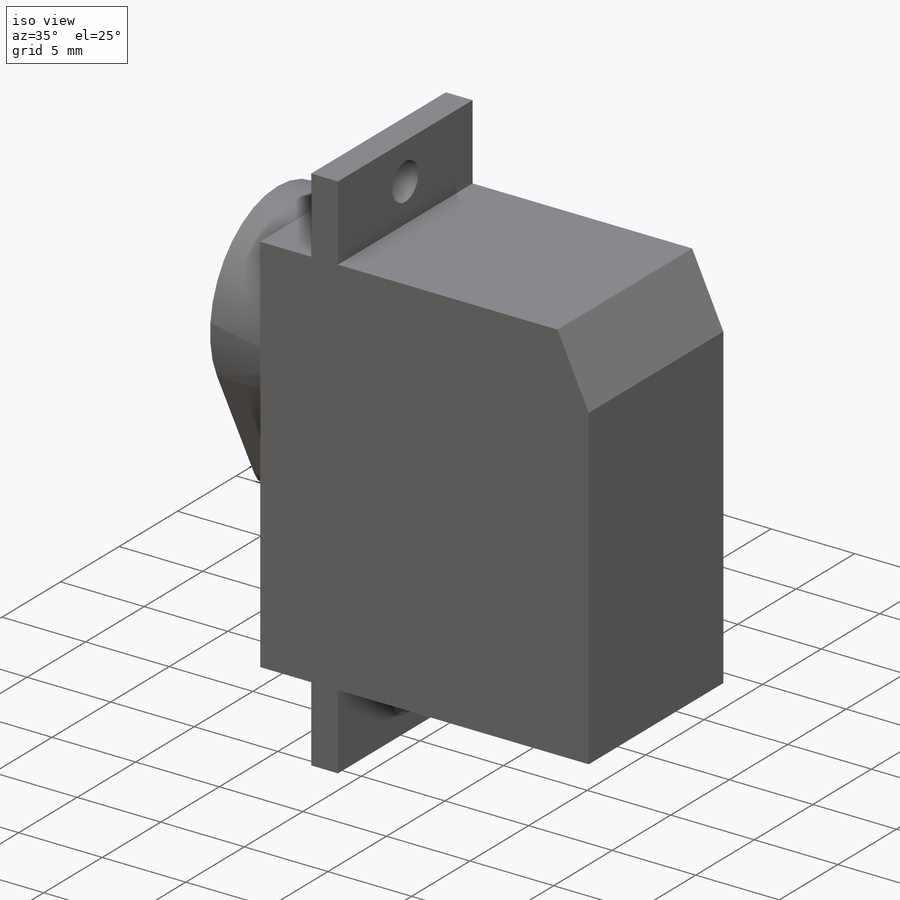
[diagram: iso view]
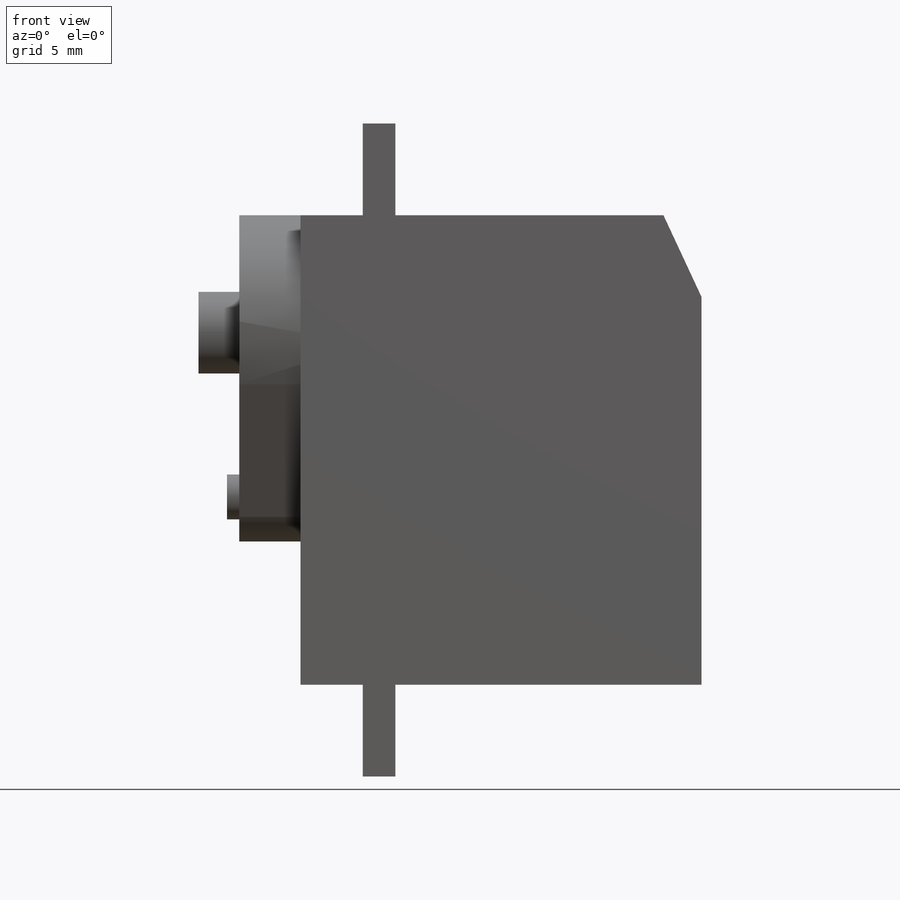
[diagram: front view]
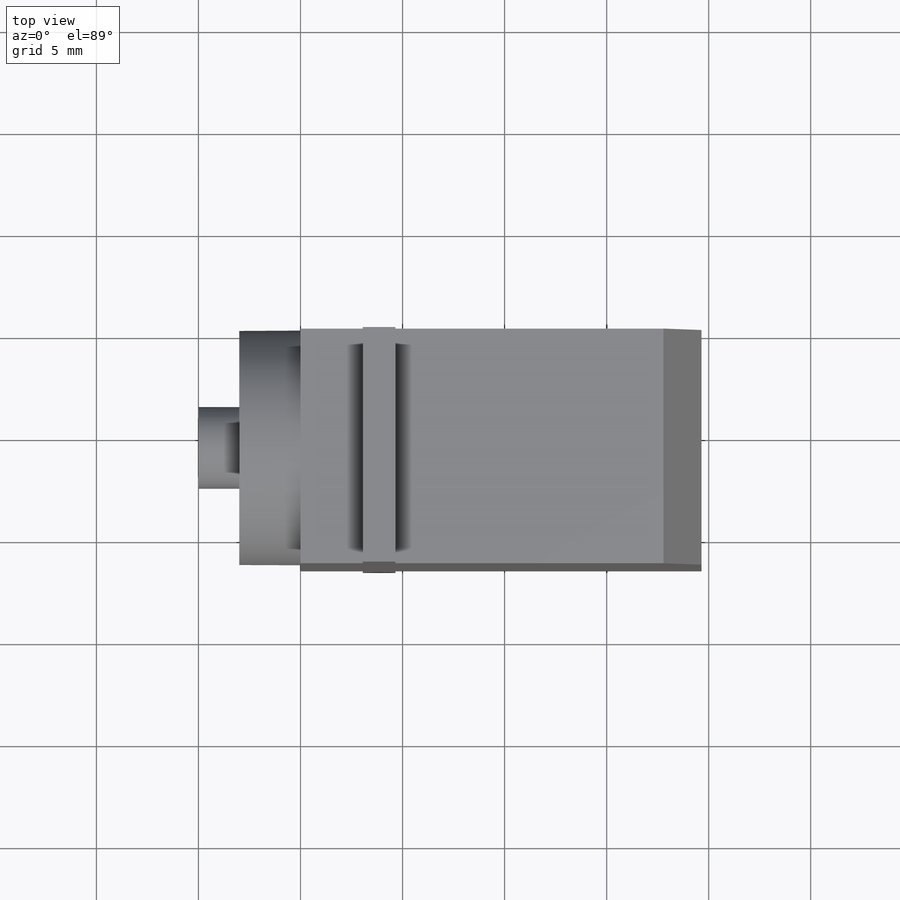
[diagram: top view]
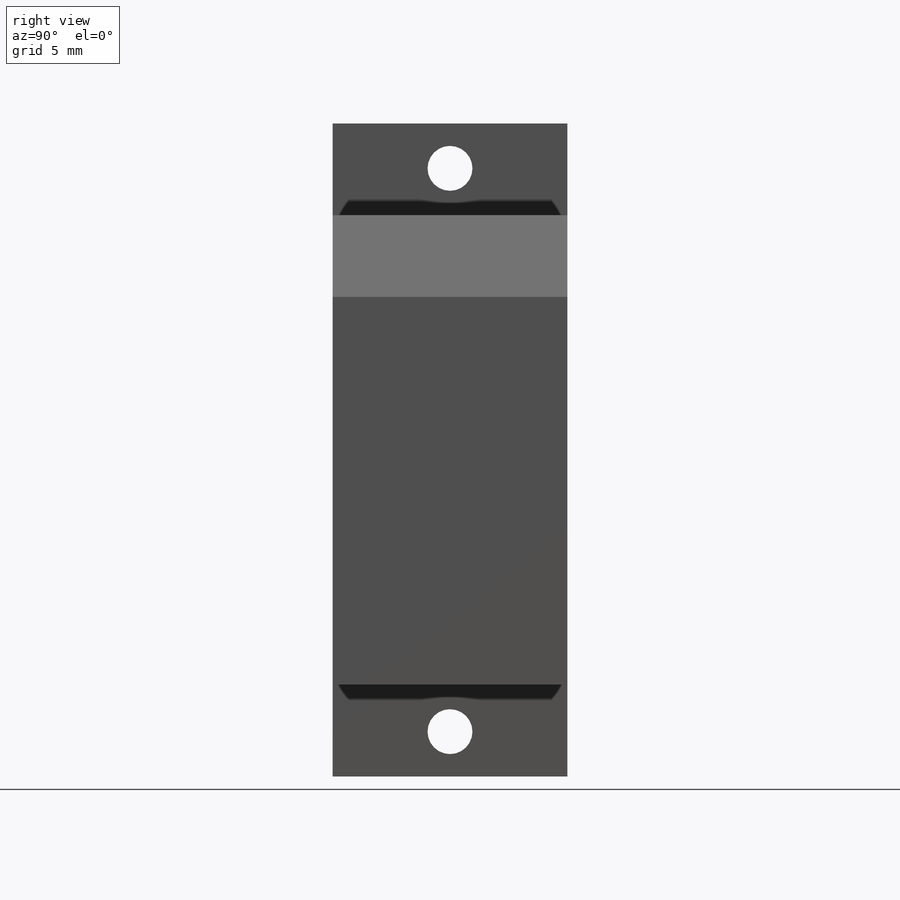
[diagram: right view]
SOLIDWORKS PART (.sldprt)
format: sldprt  version: not decoded by parser v0  size: 310,784 bytes
history: native  units: mm
features: sketch x9, extrude x4, plane x3, cut_extrude x2, material x1, chamfer x1 (+10 scaffold rows collapsed)
feature tree (30):
  scaffold x10  (default folders/planes/origin — collapsed)
  material  "聚亚安酯(11671)"
  plane  "前视基准面"
  plane  "上视基准面"
  plane  "右视基准面"
  sketch  "草图1"  dims[D1=19.65mm D2=23.0mm D3=11.5mm D4=15.0mm D5=1.6mm D6=32.0mm]
  extrude  "凸台-拉伸1"  Depth=11.5mm
  sketch  "草图2"  dims[D1=11.5mm]
  sketch  "草图3"  dims[c1.D2=~1.007876mm c1.D4=1.0mm c1.D1=5.75mm c2.D2=11.5mm c2.D3=13.8mm]
  cut_extrude  "切除-拉伸1"  [1 undecoded]
  sketch  "草图6"  dims[D1=13.8mm D2=5.75mm]
  cut_extrude  "切除-拉伸2"  [1 undecoded]
  sketch  "草图7"  dims[D1=5.8mm]
  sketch  "草图8"  dims[c1.D1=8.05mm c1.D2=~8.050173mm c2.D1=5.75mm c2.D2=5.75mm]
  sketch  "草图9"  dims[D1=10.25mm]
  sketch  "草图10"  dims[D1=0.0mm]
  extrude  "凸台-拉伸2"  Depth=3mm
  extrude  "凸台-拉伸3"  Depth=3.6mm
  sketch  "草图11"  dims[D1=~0.659686mm]
  extrude  "凸台-拉伸4"  Depth=2mm
  chamfer  "倒角1"  Distance=4mm Angle=25deg
decode coverage: 14 of 16 modeling features carry decoded parameters
note: ~ marks probable driven/reference dimensions
note: 2 parameter values undecoded
note: suppression state not decoded; provenance and decode notes live in map.json
